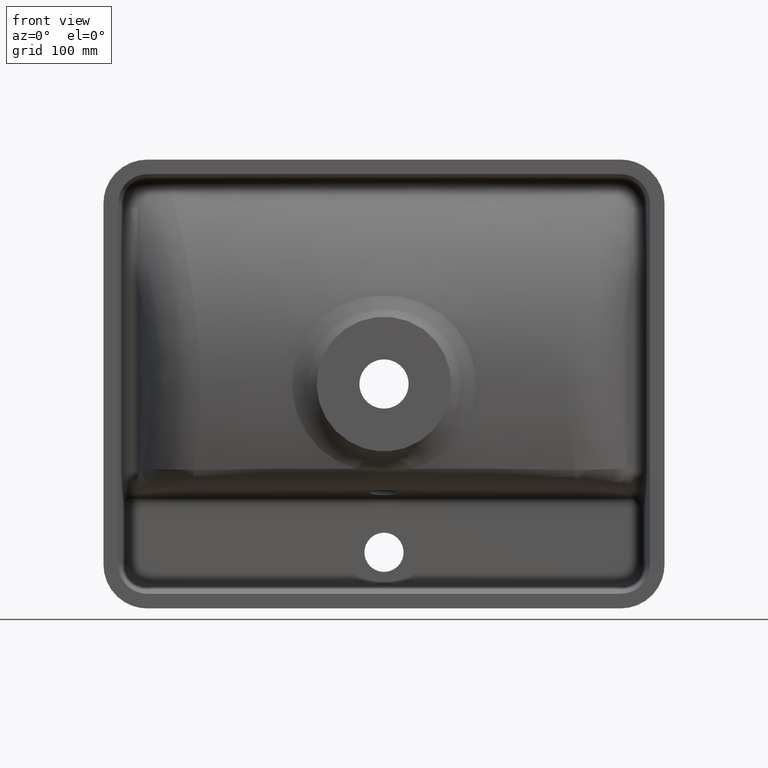
[diagram: clean part render]
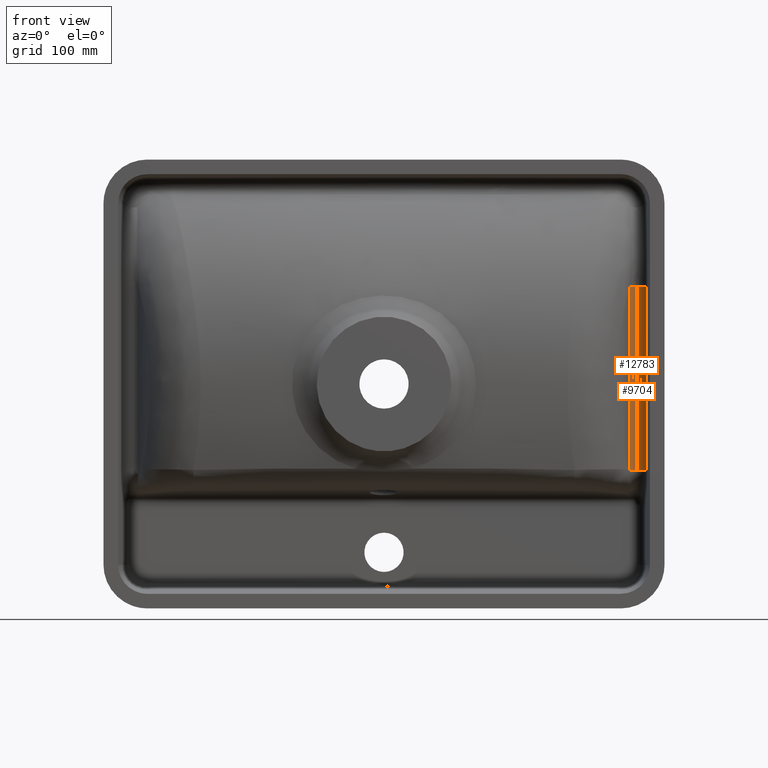
[diagram: same view with one multi-face feature highlighted, each face labeled with its STEP entity id]
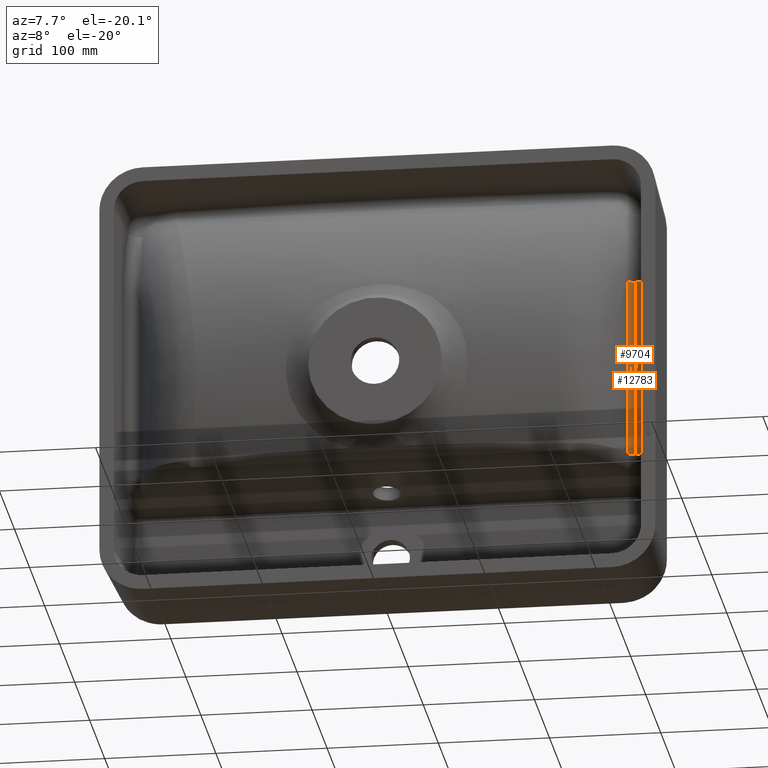
[diagram: same view with one multi-face feature highlighted, each face labeled with its STEP entity id]
A machine part, front view. The highlighted faces form ONE feature: a constant-radius fillet chain: 2 tangent blend faces with common blend radius 8 mm. The faces share edges in the B-rep.
A second angle (auxiliary view) of the same feature is appended — it is thin or edge-on in the first view.
Their STEP definitions:
[1] entity #9704 (Cylinder):
#661 = DIRECTION ( 'NONE',  ( 0.000000000000000000, 1.000000000000000000, 0.000000000000000000 ) ) ;
#879 = AXIS2_PLACEMENT_3D ( 'NONE', #5983, #11870, #8238 ) ;
#1033 = DIRECTION ( 'NONE',  ( -3.613505651715083610E-15, -1.914941265645253541E-16, -1.000000000000000000 ) ) ;
#1905 = AXIS2_PLACEMENT_3D ( 'NONE', #10839, #6086, #13264 ) ;
#1913 = CARTESIAN_POINT ( 'NONE',  ( 225.5066100723107070, 42.48976944234706821, 86.79078162252683626 ) ) ;
#2176 = CIRCLE ( 'NONE', #879, 8.000000000000007105 ) ;
#2254 = CARTESIAN_POINT ( 'NONE',  ( 233.4761676570453801, 35.18701538432832621, 199.9999999999991473 ) ) ;
#4322 = VERTEX_POINT ( 'NONE', #12062 ) ;
#4382 = CYLINDRICAL_SURFACE ( 'NONE', #10943, 8.000000000000000000 ) ;
#4924 = CARTESIAN_POINT ( 'NONE',  ( 233.4761676570443569, 35.18701538432826936, -76.71694943988470072 ) ) ;
#5361 = CARTESIAN_POINT ( 'NONE',  ( 225.5066100723113891, 34.48976944234706821, 199.9999999999991758 ) ) ;
#5701 = CARTESIAN_POINT ( 'NONE',  ( 233.4761676570449254, 35.18701538432850384, 86.79078162252680784 ) ) ;
#5983 = CARTESIAN_POINT ( 'NONE',  ( 225.5066100723103659, 34.48976944234699715, -76.71694943988467230 ) ) ;
#6086 = DIRECTION ( 'NONE',  ( -3.491481338843133750E-15, 0.000000000000000000, -1.000000000000000000 ) ) ;
#6374 = EDGE_LOOP ( 'NONE', ( #13671, #7799, #10393, #12904 ) ) ;
#7182 = EDGE_CURVE ( 'NONE', #11441, #4322, #9534, .T. ) ;
#7201 = DIRECTION ( 'NONE',  ( -3.613505651715083610E-15, -1.914941265645253541E-16, -1.000000000000000000 ) ) ;
#7799 = ORIENTED_EDGE ( 'NONE', *, *, #7182, .T. ) ;
#7853 = VECTOR ( 'NONE', #7201, 1000.000000000000000 ) ;
#8059 = VERTEX_POINT ( 'NONE', #5701 ) ;
#8238 = DIRECTION ( 'NONE',  ( -1.000000000000000000, 0.000000000000000000, 3.469446951953611033E-15 ) ) ;
#8887 = CIRCLE ( 'NONE', #1905, 8.000000000000007105 ) ;
#9534 = LINE ( 'NONE', #14459, #10936 ) ;
#9615 = LINE ( 'NONE', #2254, #7853 ) ;
#9704 = ADVANCED_FACE ( 'NONE', ( #12700 ), #4382, .F. ) ;
#10024 = EDGE_CURVE ( 'NONE', #11441, #8059, #8887, .T. ) ;
#10227 = EDGE_CURVE ( 'NONE', #4322, #10329, #2176, .T. ) ;
#10284 = EDGE_CURVE ( 'NONE', #8059, #10329, #9615, .T. ) ;
#10329 = VERTEX_POINT ( 'NONE', #4924 ) ;
#10393 = ORIENTED_EDGE ( 'NONE', *, *, #10227, .T. ) ;
#10839 = CARTESIAN_POINT ( 'NONE',  ( 225.5066100723109912, 34.48976944234706821, 86.79078162252683626 ) ) ;
#10936 = VECTOR ( 'NONE', #1033, 1000.000000000000000 ) ;
#10943 = AXIS2_PLACEMENT_3D ( 'NONE', #5361, #11736, #661 ) ;
#11441 = VERTEX_POINT ( 'NONE', #1913 ) ;
#11736 = DIRECTION ( 'NONE',  ( -3.613505651715083610E-15, -1.914941265645253541E-16, -1.000000000000000000 ) ) ;
#11870 = DIRECTION ( 'NONE',  ( -3.491481338843133355E-15, 0.000000000000000000, -1.000000000000000000 ) ) ;
#12062 = CARTESIAN_POINT ( 'NONE',  ( 225.5066100723107070, 42.48976944234699715, -76.71694943988467230 ) ) ;
#12700 = FACE_OUTER_BOUND ( 'NONE', #6374, .T. ) ;
#12904 = ORIENTED_EDGE ( 'NONE', *, *, #10284, .F. ) ;
#13264 = DIRECTION ( 'NONE',  ( -1.000000000000000000, 0.000000000000000000, 3.469446951953611033E-15 ) ) ;
#13671 = ORIENTED_EDGE ( 'NONE', *, *, #10024, .F. ) ;
#14459 = CARTESIAN_POINT ( 'NONE',  ( 225.5066100723113891, 42.48976944234706821, 199.9999999999991758 ) ) ;
[2] entity #12783 (Cylinder):
#1033 = DIRECTION ( 'NONE',  ( -3.613505651715083610E-15, -1.914941265645253541E-16, -1.000000000000000000 ) ) ;
#1913 = CARTESIAN_POINT ( 'NONE',  ( 225.5066100723107070, 42.48976944234706821, 86.79078162252683626 ) ) ;
#2192 = CIRCLE ( 'NONE', #7862, 8.000000000000007105 ) ;
#2281 = DIRECTION ( 'NONE',  ( -3.491481338843133355E-15, 0.000000000000000000, -1.000000000000000000 ) ) ;
#2551 = VERTEX_POINT ( 'NONE', #9902 ) ;
#2673 = LINE ( 'NONE', #5110, #15612 ) ;
#2798 = DIRECTION ( 'NONE',  ( -3.613505651715083610E-15, -1.914941265645253541E-16, -1.000000000000000000 ) ) ;
#2877 = DIRECTION ( 'NONE',  ( 0.000000000000000000, 1.000000000000000000, 0.000000000000000000 ) ) ;
#4028 = ORIENTED_EDGE ( 'NONE', *, *, #10916, .F. ) ;
#4322 = VERTEX_POINT ( 'NONE', #12062 ) ;
#5022 = CIRCLE ( 'NONE', #9669, 8.000000000000007105 ) ;
#5110 = CARTESIAN_POINT ( 'NONE',  ( 218.7599431335684415, 38.78889554164602060, 192.3499999999992269 ) ) ;
#6340 = AXIS2_PLACEMENT_3D ( 'NONE', #10243, #2798, #2877 ) ;
#7182 = EDGE_CURVE ( 'NONE', #11441, #4322, #9534, .T. ) ;
#7465 = CARTESIAN_POINT ( 'NONE',  ( 225.5066100723103659, 34.48976944234699715, -76.71694943988467230 ) ) ;
#7862 = AXIS2_PLACEMENT_3D ( 'NONE', #7465, #2281, #12061 ) ;
#8120 = ORIENTED_EDGE ( 'NONE', *, *, #13051, .F. ) ;
#8457 = CARTESIAN_POINT ( 'NONE',  ( 225.5066100723109912, 34.48976944234706821, 86.79078162252683626 ) ) ;
#9107 = FACE_OUTER_BOUND ( 'NONE', #11445, .T. ) ;
#9534 = LINE ( 'NONE', #14459, #10936 ) ;
#9669 = AXIS2_PLACEMENT_3D ( 'NONE', #8457, #14763, #13548 ) ;
#9696 = CARTESIAN_POINT ( 'NONE',  ( 218.7599431335675035, 38.78889554164597797, -76.71694943988465809 ) ) ;
#9902 = CARTESIAN_POINT ( 'NONE',  ( 218.7599431335681572, 38.78889554164614850, 86.79078162252685047 ) ) ;
#10039 = DIRECTION ( 'NONE',  ( 3.613505651715083610E-15, 1.914941265645253541E-16, 1.000000000000000000 ) ) ;
#10234 = VERTEX_POINT ( 'NONE', #9696 ) ;
#10243 = CARTESIAN_POINT ( 'NONE',  ( 225.5066100723113891, 34.48976944234706821, 199.9999999999991758 ) ) ;
#10916 = EDGE_CURVE ( 'NONE', #2551, #11441, #5022, .T. ) ;
#10936 = VECTOR ( 'NONE', #1033, 1000.000000000000000 ) ;
#11441 = VERTEX_POINT ( 'NONE', #1913 ) ;
#11445 = EDGE_LOOP ( 'NONE', ( #13869, #4028, #8120, #15755 ) ) ;
#12061 = DIRECTION ( 'NONE',  ( -1.000000000000000000, 0.000000000000000000, 3.469446951953611033E-15 ) ) ;
#12062 = CARTESIAN_POINT ( 'NONE',  ( 225.5066100723107070, 42.48976944234699715, -76.71694943988467230 ) ) ;
#12783 = ADVANCED_FACE ( 'NONE', ( #9107 ), #13878, .F. ) ;
#13051 = EDGE_CURVE ( 'NONE', #10234, #2551, #2673, .T. ) ;
#13548 = DIRECTION ( 'NONE',  ( -1.000000000000000000, 0.000000000000000000, 3.469446951953611033E-15 ) ) ;
#13684 = EDGE_CURVE ( 'NONE', #10234, #4322, #2192, .T. ) ;
#13869 = ORIENTED_EDGE ( 'NONE', *, *, #7182, .F. ) ;
#13878 = CYLINDRICAL_SURFACE ( 'NONE', #6340, 8.000000000000000000 ) ;
#14459 = CARTESIAN_POINT ( 'NONE',  ( 225.5066100723113891, 42.48976944234706821, 199.9999999999991758 ) ) ;
#14763 = DIRECTION ( 'NONE',  ( -3.491481338843133750E-15, 0.000000000000000000, -1.000000000000000000 ) ) ;
#15612 = VECTOR ( 'NONE', #10039, 1000.000000000000000 ) ;
#15755 = ORIENTED_EDGE ( 'NONE', *, *, #13684, .T. ) ;